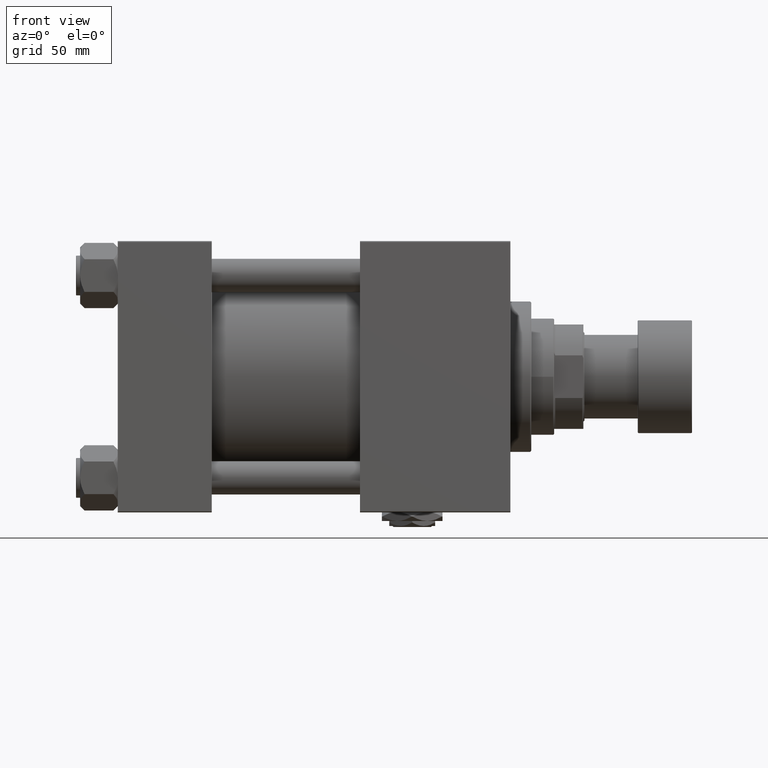
[diagram: clean part render]
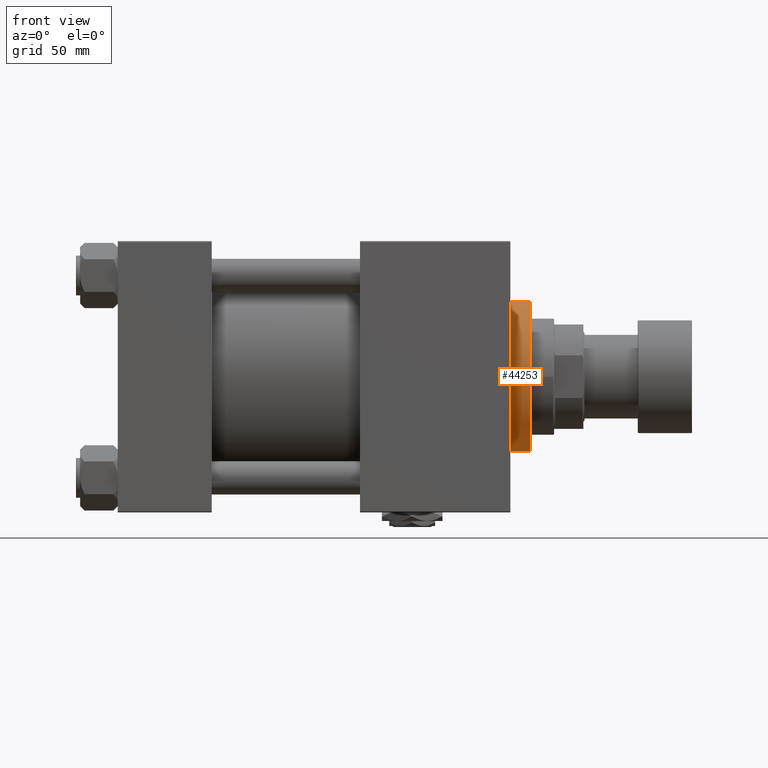
[diagram: same view with one face highlighted and labeled with its STEP entity id]
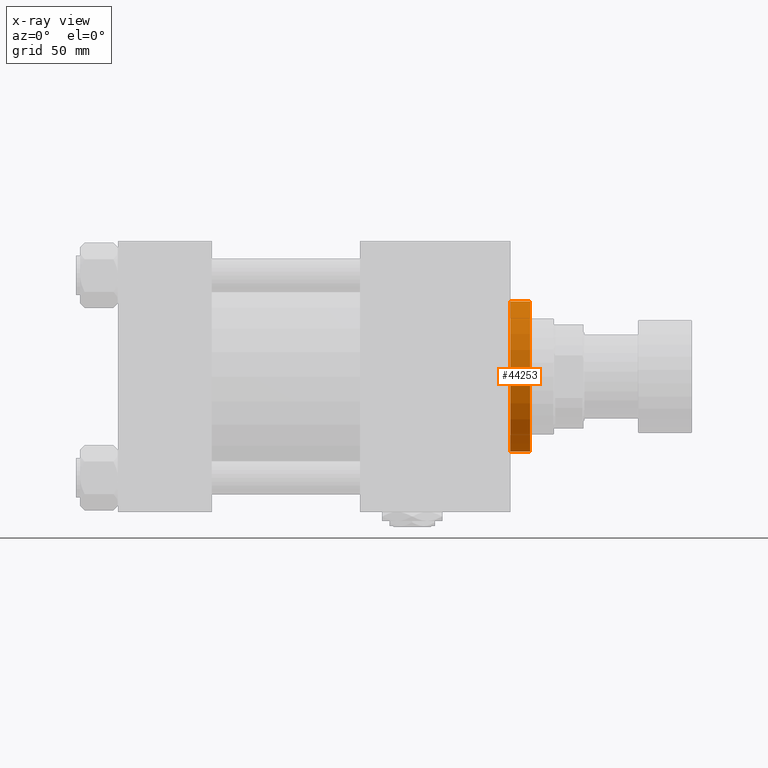
[diagram: x-ray of the same camera — body ghosted, the highlighted face saturated]
A machine part, front view. The second image highlights one B-rep face of the part: STEP entity #44253.
The next image is the same camera in x-ray: the body ghosted, the highlighted face saturated — about 0% of this face is hidden behind the body in this view.
In plain terms, the highlighted cylindrical surface (partial cylindrical patch) has radius 36 mm, axis along (-1, -0, -0).
Its self-contained STEP definition (entity closure, byte-faithful):
#2409 = VERTEX_POINT ( 'NONE', #9824 ) ;
#4181 = CARTESIAN_POINT ( 'NONE',  ( -36.00000000000000000, 0.000000000000000000, 28.69999999999999929 ) ) ;
#4286 = CARTESIAN_POINT ( 'NONE',  ( 36.00000000000000000, 4.408728476930470856E-15, 38.19999999999998863 ) ) ;
#4690 = CARTESIAN_POINT ( 'NONE',  ( 0.000000000000000000, 0.000000000000000000, 38.19999999999998863 ) ) ;
#9057 = AXIS2_PLACEMENT_3D ( 'NONE', #11553, #48842, #16652 ) ;
#9696 = ORIENTED_EDGE ( 'NONE', *, *, #15731, .F. ) ;
#9824 = CARTESIAN_POINT ( 'NONE',  ( -36.00000000000000000, 0.000000000000000000, 38.19999999999998863 ) ) ;
#9992 = VECTOR ( 'NONE', #21620, 1000.000000000000000 ) ;
#11553 = CARTESIAN_POINT ( 'NONE',  ( 0.000000000000000000, 0.000000000000000000, 28.69999999999999929 ) ) ;
#11638 = CIRCLE ( 'NONE', #9057, 36.00000000000000000 ) ;
#12485 = VERTEX_POINT ( 'NONE', #36488 ) ;
#13558 = LINE ( 'NONE', #34230, #9992 ) ;
#14680 = EDGE_CURVE ( 'NONE', #2409, #26609, #13558, .T. ) ;
#15731 = EDGE_CURVE ( 'NONE', #39832, #12485, #52165, .T. ) ;
#16652 = DIRECTION ( 'NONE',  ( 1.000000000000000000, 0.000000000000000000, 0.000000000000000000 ) ) ;
#19290 = CARTESIAN_POINT ( 'NONE',  ( 0.000000000000000000, 0.000000000000000000, 38.69999999999999574 ) ) ;
#21620 = DIRECTION ( 'NONE',  ( -0.000000000000000000, -0.000000000000000000, -1.000000000000000000 ) ) ;
#24884 = EDGE_LOOP ( 'NONE', ( #9696, #29527, #42936, #27365 ) ) ;
#26609 = VERTEX_POINT ( 'NONE', #4181 ) ;
#26795 = DIRECTION ( 'NONE',  ( -1.000000000000000000, 0.000000000000000000, 0.000000000000000000 ) ) ;
#27365 = ORIENTED_EDGE ( 'NONE', *, *, #43264, .T. ) ;
#29527 = ORIENTED_EDGE ( 'NONE', *, *, #50433, .T. ) ;
#34230 = CARTESIAN_POINT ( 'NONE',  ( -36.00000000000000000, 0.000000000000000000, 38.69999999999999574 ) ) ;
#34849 = DIRECTION ( 'NONE',  ( -0.000000000000000000, -0.000000000000000000, -1.000000000000000000 ) ) ;
#36488 = CARTESIAN_POINT ( 'NONE',  ( 36.00000000000000000, 4.408728476930470856E-15, 28.69999999999999929 ) ) ;
#39832 = VERTEX_POINT ( 'NONE', #4286 ) ;
#40407 = DIRECTION ( 'NONE',  ( 1.000000000000000000, 0.000000000000000000, 0.000000000000000000 ) ) ;
#40884 = DIRECTION ( 'NONE',  ( -0.000000000000000000, -0.000000000000000000, -1.000000000000000000 ) ) ;
#41155 = CARTESIAN_POINT ( 'NONE',  ( 36.00000000000000000, 4.408728476930470856E-15, 38.69999999999999574 ) ) ;
#42936 = ORIENTED_EDGE ( 'NONE', *, *, #14680, .T. ) ;
#43264 = EDGE_CURVE ( 'NONE', #26609, #12485, #11638, .T. ) ;
#44253 = ADVANCED_FACE ( 'NONE', ( #47709 ), #51207, .T. ) ;
#44421 = DIRECTION ( 'NONE',  ( 0.000000000000000000, 0.000000000000000000, -1.000000000000000000 ) ) ;
#46013 = VECTOR ( 'NONE', #40884, 1000.000000000000000 ) ;
#47709 = FACE_OUTER_BOUND ( 'NONE', #24884, .T. ) ;
#47729 = CIRCLE ( 'NONE', #52015, 36.00000000000000000 ) ;
#48514 = AXIS2_PLACEMENT_3D ( 'NONE', #19290, #34849, #26795 ) ;
#48842 = DIRECTION ( 'NONE',  ( 0.000000000000000000, 0.000000000000000000, 1.000000000000000000 ) ) ;
#50433 = EDGE_CURVE ( 'NONE', #39832, #2409, #47729, .T. ) ;
#51207 = CYLINDRICAL_SURFACE ( 'NONE', #48514, 36.00000000000000000 ) ;
#52015 = AXIS2_PLACEMENT_3D ( 'NONE', #4690, #44421, #40407 ) ;
#52165 = LINE ( 'NONE', #41155, #46013 ) ;